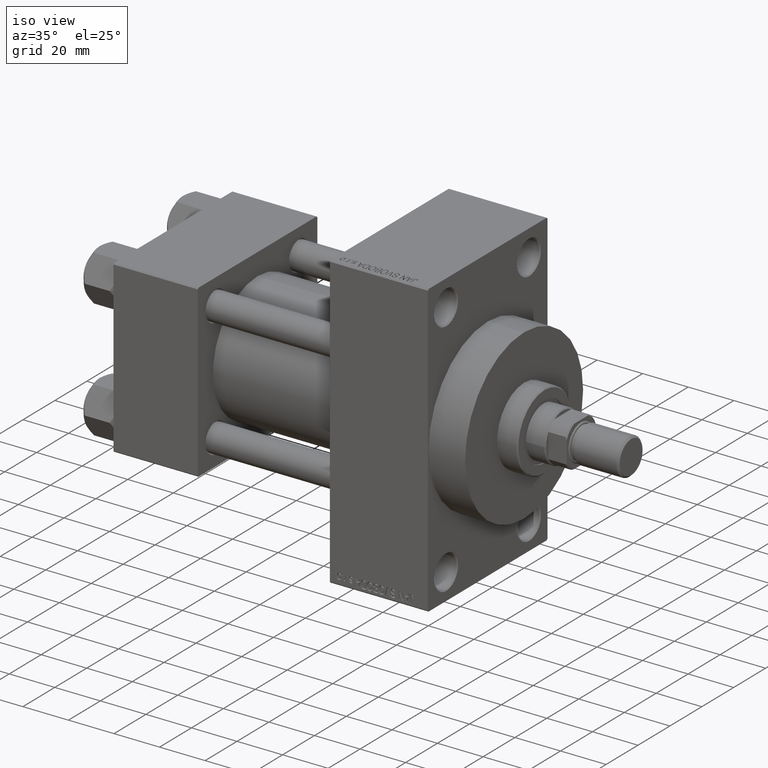
[diagram: clean part render]
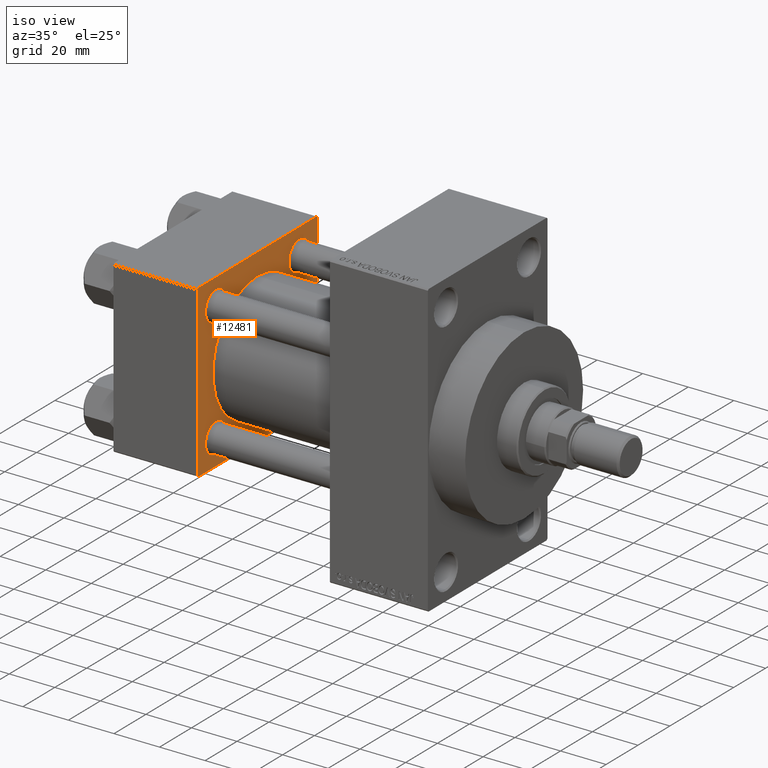
[diagram: same view with one face highlighted and labeled with its STEP entity id]
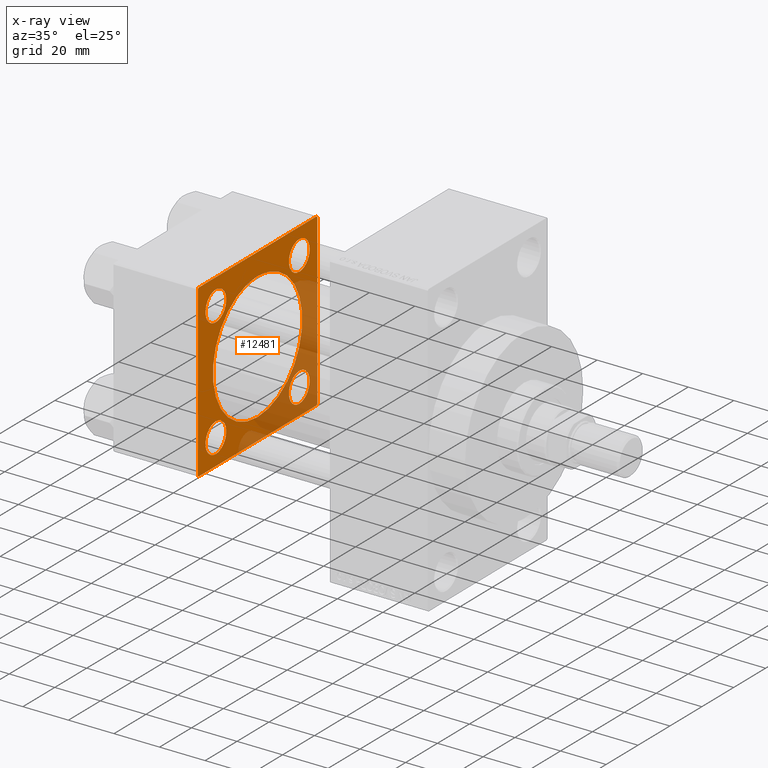
[diagram: x-ray of the same camera — body ghosted, the highlighted face saturated]
A machine part, iso view. The second image highlights one B-rep face of the part: STEP entity #12481.
The next image is the same camera in x-ray: the body ghosted, the highlighted face saturated — about 33% of this face is hidden behind the body in this view.
In plain terms, the highlighted planar face has unit normal (-1, 0, 0).
Its self-contained STEP definition (entity closure, byte-faithful):
#224 = DIRECTION ( 'NONE',  ( -1.000000000000000000, 0.000000000000000000, -0.000000000000000000 ) ) ;
#334 = ORIENTED_EDGE ( 'NONE', *, *, #20745, .T. ) ;
#418 = CARTESIAN_POINT ( 'NONE',  ( 37.00000000000000000, -26.14999999999999147, -32.65000000000006963 ) ) ;
#1326 = VERTEX_POINT ( 'NONE', #25731 ) ;
#1732 = AXIS2_PLACEMENT_3D ( 'NONE', #7044, #3429, #32845 ) ;
#1798 = CARTESIAN_POINT ( 'NONE',  ( 37.00000000000000000, -37.50000000000000711, 36.99999999999999289 ) ) ;
#2070 = FACE_BOUND ( 'NONE', #19694, .T. ) ;
#2095 = VERTEX_POINT ( 'NONE', #10841 ) ;
#2306 = FACE_BOUND ( 'NONE', #34716, .T. ) ;
#2486 = EDGE_CURVE ( 'NONE', #33513, #19235, #13369, .T. ) ;
#2663 = EDGE_CURVE ( 'NONE', #38627, #33513, #4138, .T. ) ;
#2862 = ORIENTED_EDGE ( 'NONE', *, *, #41325, .T. ) ;
#3429 = DIRECTION ( 'NONE',  ( -1.000000000000000000, 0.000000000000000000, -0.000000000000000000 ) ) ;
#3665 = VERTEX_POINT ( 'NONE', #21130 ) ;
#3723 = CIRCLE ( 'NONE', #30681, 28.00000000000000000 ) ;
#4138 = LINE ( 'NONE', #40326, #16320 ) ;
#4788 = EDGE_CURVE ( 'NONE', #30762, #5707, #21749, .T. ) ;
#5022 = DIRECTION ( 'NONE',  ( 0.000000000000000000, 0.000000000000000000, -1.000000000000000000 ) ) ;
#5079 = CIRCLE ( 'NONE', #11265, 6.500000000000002665 ) ;
#5210 = LINE ( 'NONE', #12236, #18948 ) ;
#5360 = ORIENTED_EDGE ( 'NONE', *, *, #4788, .F. ) ;
#5707 = VERTEX_POINT ( 'NONE', #13622 ) ;
#5881 = CARTESIAN_POINT ( 'NONE',  ( 37.00000000000000000, -37.00000000000002132, -37.50000000000000711 ) ) ;
#6122 = VERTEX_POINT ( 'NONE', #24483 ) ;
#6350 = AXIS2_PLACEMENT_3D ( 'NONE', #12887, #41814, #27570 ) ;
#6689 = CARTESIAN_POINT ( 'NONE',  ( 37.00000000000000000, 8.269258236473776482E-16, -28.00000000000000000 ) ) ;
#6955 = AXIS2_PLACEMENT_3D ( 'NONE', #18930, #26144, #37698 ) ;
#7044 = CARTESIAN_POINT ( 'NONE',  ( 37.00000000000000000, -26.14999999999999147, 26.15000000000000924 ) ) ;
#7229 = EDGE_CURVE ( 'NONE', #44666, #2095, #29447, .T. ) ;
#7303 = VERTEX_POINT ( 'NONE', #10448 ) ;
#7429 = ORIENTED_EDGE ( 'NONE', *, *, #7229, .T. ) ;
#7584 = CARTESIAN_POINT ( 'NONE',  ( 37.00000000000000000, 37.49999999999999289, 37.00000000000000000 ) ) ;
#7731 = VECTOR ( 'NONE', #16123, 1000.000000000000114 ) ;
#7771 = CIRCLE ( 'NONE', #10845, 6.500000000000002665 ) ;
#8797 = VERTEX_POINT ( 'NONE', #40702 ) ;
#8865 = AXIS2_PLACEMENT_3D ( 'NONE', #25628, #34859, #38731 ) ;
#10448 = CARTESIAN_POINT ( 'NONE',  ( 37.00000000000000000, 26.14999999999999858, 32.65000000000001279 ) ) ;
#10841 = CARTESIAN_POINT ( 'NONE',  ( 37.00000000000000000, -26.14999999999999147, 32.65000000000007674 ) ) ;
#10845 = AXIS2_PLACEMENT_3D ( 'NONE', #33243, #224, #44343 ) ;
#10913 = FACE_BOUND ( 'NONE', #32223, .T. ) ;
#11089 = CARTESIAN_POINT ( 'NONE',  ( 37.00000000000000000, 26.14999999999999858, 26.15000000000000213 ) ) ;
#11265 = AXIS2_PLACEMENT_3D ( 'NONE', #14534, #36693, #47542 ) ;
#12152 = EDGE_CURVE ( 'NONE', #35860, #45916, #30593, .T. ) ;
#12236 = CARTESIAN_POINT ( 'NONE',  ( 37.00000000000000000, 37.49999999999999289, -36.99999999999998579 ) ) ;
#12481 = ADVANCED_FACE ( 'NONE', ( #29230, #2306, #10913, #2070, #43937, #25380 ), #27624, .F. ) ;
#12887 = CARTESIAN_POINT ( 'NONE',  ( 37.00000000000000000, -2.602085213965210642E-15, 0.000000000000000000 ) ) ;
#13216 = VERTEX_POINT ( 'NONE', #418 ) ;
#13369 = LINE ( 'NONE', #16492, #42469 ) ;
#13622 = CARTESIAN_POINT ( 'NONE',  ( 37.00000000000000000, -2.602085213965210642E-15, 28.00000000000000000 ) ) ;
#14340 = EDGE_CURVE ( 'NONE', #6122, #45916, #5210, .T. ) ;
#14534 = CARTESIAN_POINT ( 'NONE',  ( 37.00000000000000000, 26.14999999999999858, -26.15000000000000213 ) ) ;
#15901 = LINE ( 'NONE', #37816, #7731 ) ;
#15943 = ORIENTED_EDGE ( 'NONE', *, *, #12152, .F. ) ;
#16123 = DIRECTION ( 'NONE',  ( 0.000000000000000000, -0.7071067811865474617, 0.7071067811865474617 ) ) ;
#16244 = DIRECTION ( 'NONE',  ( 0.000000000000000000, 0.000000000000000000, 1.000000000000000000 ) ) ;
#16320 = VECTOR ( 'NONE', #40789, 1000.000000000000000 ) ;
#16492 = CARTESIAN_POINT ( 'NONE',  ( 37.00000000000000000, -37.00000000000002132, -37.50000000000000711 ) ) ;
#16524 = DIRECTION ( 'NONE',  ( -0.000000000000000000, -0.7071067811865474617, -0.7071067811865474617 ) ) ;
#16571 = VECTOR ( 'NONE', #5022, 1000.000000000000000 ) ;
#17203 = AXIS2_PLACEMENT_3D ( 'NONE', #26396, #22544, #19167 ) ;
#18623 = VERTEX_POINT ( 'NONE', #40996 ) ;
#18930 = CARTESIAN_POINT ( 'NONE',  ( 37.00000000000000000, -26.14999999999999147, -26.15000000000000924 ) ) ;
#18948 = VECTOR ( 'NONE', #19719, 1000.000000000000114 ) ;
#19075 = DIRECTION ( 'NONE',  ( 0.000000000000000000, -1.000000000000000000, -9.251858538542972814E-17 ) ) ;
#19167 = DIRECTION ( 'NONE',  ( 0.000000000000000000, 0.000000000000000000, 1.000000000000000000 ) ) ;
#19235 = VERTEX_POINT ( 'NONE', #5881 ) ;
#19280 = CIRCLE ( 'NONE', #6955, 6.500000000000057732 ) ;
#19313 = CARTESIAN_POINT ( 'NONE',  ( 37.00000000000000000, 37.49999999999999289, -37.50000000000000000 ) ) ;
#19694 = EDGE_LOOP ( 'NONE', ( #25185, #26844 ) ) ;
#19719 = DIRECTION ( 'NONE',  ( -0.000000000000000000, 0.7071067811865474617, 0.7071067811865474617 ) ) ;
#20553 = EDGE_CURVE ( 'NONE', #6122, #19235, #44607, .T. ) ;
#20695 = CIRCLE ( 'NONE', #28389, 6.500000000000057732 ) ;
#20716 = EDGE_CURVE ( 'NONE', #5707, #30762, #3723, .T. ) ;
#20745 = EDGE_CURVE ( 'NONE', #43028, #13216, #20695, .T. ) ;
#20889 = CARTESIAN_POINT ( 'NONE',  ( 37.00000000000000000, 37.49999999999999289, 37.50000000000000000 ) ) ;
#21087 = EDGE_CURVE ( 'NONE', #8797, #38627, #34820, .T. ) ;
#21130 = CARTESIAN_POINT ( 'NONE',  ( 37.00000000000000000, 26.14999999999999858, 19.64999999999999858 ) ) ;
#21209 = CARTESIAN_POINT ( 'NONE',  ( 37.00000000000000000, -26.14999999999999147, -26.15000000000000924 ) ) ;
#21345 = CARTESIAN_POINT ( 'NONE',  ( 37.00000000000000000, -26.14999999999999147, -19.64999999999995239 ) ) ;
#21434 = ORIENTED_EDGE ( 'NONE', *, *, #25369, .T. ) ;
#21749 = CIRCLE ( 'NONE', #6350, 28.00000000000000000 ) ;
#22057 = ORIENTED_EDGE ( 'NONE', *, *, #39242, .T. ) ;
#22459 = EDGE_LOOP ( 'NONE', ( #25886, #5360 ) ) ;
#22544 = DIRECTION ( 'NONE',  ( -1.000000000000000000, 0.000000000000000000, -0.000000000000000000 ) ) ;
#22745 = VERTEX_POINT ( 'NONE', #41255 ) ;
#24483 = CARTESIAN_POINT ( 'NONE',  ( 37.00000000000000000, 36.99999999999997868, -37.50000000000000000 ) ) ;
#24822 = DIRECTION ( 'NONE',  ( -1.000000000000000000, 0.000000000000000000, -0.000000000000000000 ) ) ;
#25185 = ORIENTED_EDGE ( 'NONE', *, *, #39531, .T. ) ;
#25369 = EDGE_CURVE ( 'NONE', #22745, #8797, #39200, .T. ) ;
#25380 = FACE_OUTER_BOUND ( 'NONE', #26487, .T. ) ;
#25402 = AXIS2_PLACEMENT_3D ( 'NONE', #11089, #29398, #39553 ) ;
#25628 = CARTESIAN_POINT ( 'NONE',  ( 37.00000000000000000, 0.000000000000000000, 0.000000000000000000 ) ) ;
#25731 = CARTESIAN_POINT ( 'NONE',  ( 37.00000000000000000, 26.14999999999999858, -19.65000000000000213 ) ) ;
#25886 = ORIENTED_EDGE ( 'NONE', *, *, #20716, .F. ) ;
#26144 = DIRECTION ( 'NONE',  ( -1.000000000000000000, 0.000000000000000000, -0.000000000000000000 ) ) ;
#26396 = CARTESIAN_POINT ( 'NONE',  ( 37.00000000000000000, 26.14999999999999858, -26.15000000000000213 ) ) ;
#26487 = EDGE_LOOP ( 'NONE', ( #43730, #34104, #15943, #2862, #21434, #39589, #33225, #43767 ) ) ;
#26831 = VECTOR ( 'NONE', #16524, 1000.000000000000114 ) ;
#26844 = ORIENTED_EDGE ( 'NONE', *, *, #42245, .T. ) ;
#27225 = EDGE_CURVE ( 'NONE', #2095, #44666, #29244, .T. ) ;
#27570 = DIRECTION ( 'NONE',  ( 0.000000000000000000, 0.000000000000000000, 1.000000000000000000 ) ) ;
#27624 = PLANE ( 'NONE',  #8865 ) ;
#28031 = EDGE_CURVE ( 'NONE', #13216, #43028, #19280, .T. ) ;
#28389 = AXIS2_PLACEMENT_3D ( 'NONE', #21209, #24822, #43388 ) ;
#28668 = CARTESIAN_POINT ( 'NONE',  ( 37.00000000000000000, -2.602085213965210642E-15, 0.000000000000000000 ) ) ;
#28905 = DIRECTION ( 'NONE',  ( 1.000000000000000000, -0.000000000000000000, 0.000000000000000000 ) ) ;
#29230 = FACE_BOUND ( 'NONE', #41251, .T. ) ;
#29244 = CIRCLE ( 'NONE', #30023, 6.500000000000064837 ) ;
#29398 = DIRECTION ( 'NONE',  ( -1.000000000000000000, 0.000000000000000000, -0.000000000000000000 ) ) ;
#29447 = CIRCLE ( 'NONE', #1732, 6.500000000000064837 ) ;
#29962 = VECTOR ( 'NONE', #35578, 1000.000000000000000 ) ;
#30023 = AXIS2_PLACEMENT_3D ( 'NONE', #41322, #34074, #16244 ) ;
#30593 = LINE ( 'NONE', #38073, #16571 ) ;
#30681 = AXIS2_PLACEMENT_3D ( 'NONE', #28668, #28905, #39762 ) ;
#30762 = VERTEX_POINT ( 'NONE', #6689 ) ;
#31826 = CARTESIAN_POINT ( 'NONE',  ( 37.00000000000000000, -37.50000000000000711, 36.99999999999999289 ) ) ;
#32223 = EDGE_LOOP ( 'NONE', ( #7429, #32643 ) ) ;
#32643 = ORIENTED_EDGE ( 'NONE', *, *, #27225, .T. ) ;
#32845 = DIRECTION ( 'NONE',  ( 0.000000000000000000, 0.000000000000000000, 1.000000000000000000 ) ) ;
#33225 = ORIENTED_EDGE ( 'NONE', *, *, #2663, .T. ) ;
#33243 = CARTESIAN_POINT ( 'NONE',  ( 37.00000000000000000, 26.14999999999999858, 26.15000000000000213 ) ) ;
#33513 = VERTEX_POINT ( 'NONE', #46947 ) ;
#34074 = DIRECTION ( 'NONE',  ( -1.000000000000000000, 0.000000000000000000, -0.000000000000000000 ) ) ;
#34104 = ORIENTED_EDGE ( 'NONE', *, *, #14340, .T. ) ;
#34716 = EDGE_LOOP ( 'NONE', ( #22057, #46113 ) ) ;
#34820 = LINE ( 'NONE', #1798, #26831 ) ;
#34859 = DIRECTION ( 'NONE',  ( -1.000000000000000000, 0.000000000000000000, -0.000000000000000000 ) ) ;
#34860 = CIRCLE ( 'NONE', #17203, 6.500000000000002665 ) ;
#35578 = DIRECTION ( 'NONE',  ( 0.000000000000000000, -1.000000000000000000, -9.251858538542971581E-17 ) ) ;
#35860 = VERTEX_POINT ( 'NONE', #7584 ) ;
#36666 = ORIENTED_EDGE ( 'NONE', *, *, #28031, .T. ) ;
#36693 = DIRECTION ( 'NONE',  ( -1.000000000000000000, 0.000000000000000000, -0.000000000000000000 ) ) ;
#37698 = DIRECTION ( 'NONE',  ( 0.000000000000000000, 0.000000000000000000, 1.000000000000000000 ) ) ;
#37816 = CARTESIAN_POINT ( 'NONE',  ( 37.00000000000000000, 36.99999999999999289, 37.50000000000000000 ) ) ;
#38073 = CARTESIAN_POINT ( 'NONE',  ( 37.00000000000000000, 37.49999999999999289, 37.50000000000000000 ) ) ;
#38627 = VERTEX_POINT ( 'NONE', #31826 ) ;
#38660 = DIRECTION ( 'NONE',  ( 0.000000000000000000, 0.7071067811865524577, -0.7071067811865426878 ) ) ;
#38731 = DIRECTION ( 'NONE',  ( -0.000000000000000000, 0.000000000000000000, 1.000000000000000000 ) ) ;
#39200 = LINE ( 'NONE', #20889, #29962 ) ;
#39242 = EDGE_CURVE ( 'NONE', #18623, #1326, #5079, .T. ) ;
#39531 = EDGE_CURVE ( 'NONE', #3665, #7303, #46190, .T. ) ;
#39553 = DIRECTION ( 'NONE',  ( 0.000000000000000000, 0.000000000000000000, 1.000000000000000000 ) ) ;
#39589 = ORIENTED_EDGE ( 'NONE', *, *, #21087, .T. ) ;
#39630 = CARTESIAN_POINT ( 'NONE',  ( 37.00000000000000000, -26.14999999999999147, 19.64999999999994529 ) ) ;
#39762 = DIRECTION ( 'NONE',  ( 0.000000000000000000, 0.000000000000000000, 1.000000000000000000 ) ) ;
#40326 = CARTESIAN_POINT ( 'NONE',  ( 37.00000000000000000, -37.50000000000000711, 37.49999999999999289 ) ) ;
#40702 = CARTESIAN_POINT ( 'NONE',  ( 37.00000000000000000, -37.00000000000000711, 37.49999999999999289 ) ) ;
#40789 = DIRECTION ( 'NONE',  ( 0.000000000000000000, 9.251858538542971581E-17, -1.000000000000000000 ) ) ;
#40996 = CARTESIAN_POINT ( 'NONE',  ( 37.00000000000000000, 26.14999999999999858, -32.65000000000000568 ) ) ;
#41251 = EDGE_LOOP ( 'NONE', ( #36666, #334 ) ) ;
#41255 = CARTESIAN_POINT ( 'NONE',  ( 37.00000000000000000, 36.99999999999999289, 37.50000000000000000 ) ) ;
#41322 = CARTESIAN_POINT ( 'NONE',  ( 37.00000000000000000, -26.14999999999999147, 26.15000000000000924 ) ) ;
#41325 = EDGE_CURVE ( 'NONE', #35860, #22745, #15901, .T. ) ;
#41814 = DIRECTION ( 'NONE',  ( 1.000000000000000000, -0.000000000000000000, 0.000000000000000000 ) ) ;
#42099 = CARTESIAN_POINT ( 'NONE',  ( 37.00000000000000000, 37.49999999999999289, -36.99999999999998579 ) ) ;
#42245 = EDGE_CURVE ( 'NONE', #7303, #3665, #7771, .T. ) ;
#42469 = VECTOR ( 'NONE', #38660, 1000.000000000000000 ) ;
#43028 = VERTEX_POINT ( 'NONE', #21345 ) ;
#43388 = DIRECTION ( 'NONE',  ( 0.000000000000000000, 0.000000000000000000, 1.000000000000000000 ) ) ;
#43730 = ORIENTED_EDGE ( 'NONE', *, *, #20553, .F. ) ;
#43767 = ORIENTED_EDGE ( 'NONE', *, *, #2486, .T. ) ;
#43937 = FACE_BOUND ( 'NONE', #22459, .T. ) ;
#44343 = DIRECTION ( 'NONE',  ( 0.000000000000000000, 0.000000000000000000, 1.000000000000000000 ) ) ;
#44607 = LINE ( 'NONE', #19313, #46101 ) ;
#44666 = VERTEX_POINT ( 'NONE', #39630 ) ;
#45916 = VERTEX_POINT ( 'NONE', #42099 ) ;
#46101 = VECTOR ( 'NONE', #19075, 1000.000000000000000 ) ;
#46113 = ORIENTED_EDGE ( 'NONE', *, *, #46295, .T. ) ;
#46190 = CIRCLE ( 'NONE', #25402, 6.500000000000002665 ) ;
#46295 = EDGE_CURVE ( 'NONE', #1326, #18623, #34860, .T. ) ;
#46947 = CARTESIAN_POINT ( 'NONE',  ( 37.00000000000000000, -37.50000000000000000, -37.00000000000003553 ) ) ;
#47542 = DIRECTION ( 'NONE',  ( 0.000000000000000000, 0.000000000000000000, 1.000000000000000000 ) ) ;